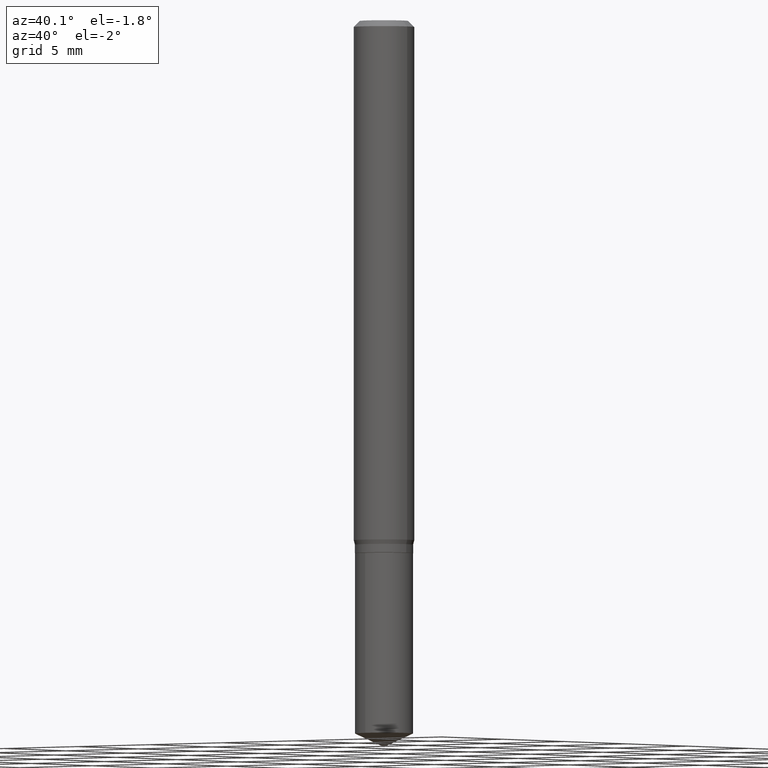
[diagram: clean part render]
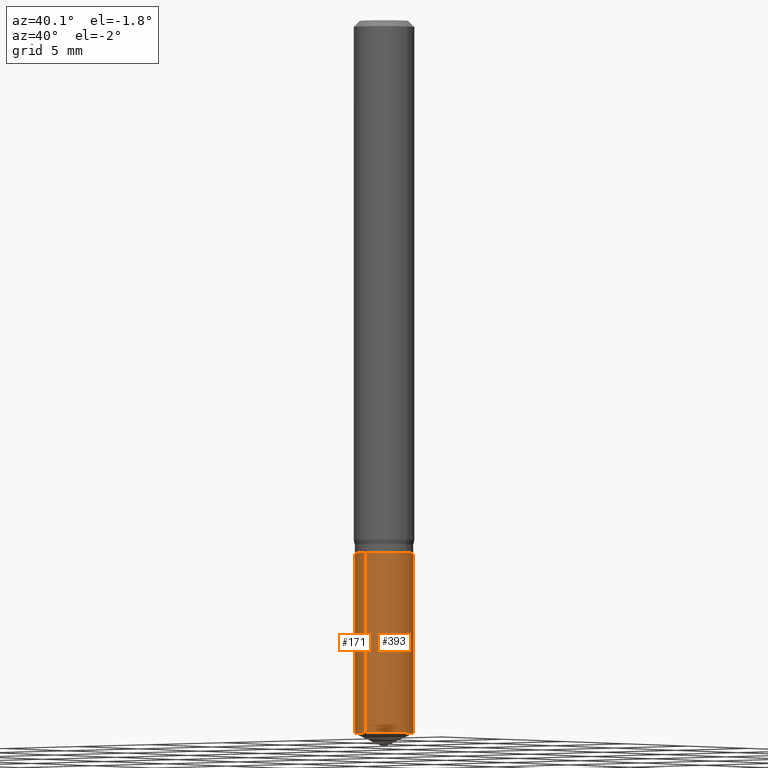
[diagram: same view with one multi-face feature highlighted, each face labeled with its STEP entity id]
A machine part, auxiliary view. The highlighted faces form ONE feature: a constant-radius fillet chain: 2 tangent blend faces with common blend radius 1.5253 mm. The faces share edges in the B-rep.
Their STEP definitions:
[1] entity #171 (Cylinder):
#7 = VERTEX_POINT ( 'NONE', #17 ) ;
#14 = ORIENTED_EDGE ( 'NONE', *, *, #213, .T. ) ;
#17 = CARTESIAN_POINT ( 'NONE',  ( -4.193269087950243510E-16, -0.06005000000000513399, -1.471998225127792548 ) ) ;
#23 = DIRECTION ( 'NONE',  ( -6.982962677686265922E-15, -1.000000000000000000, 4.549288915344318469E-15 ) ) ;
#31 = ORIENTED_EDGE ( 'NONE', *, *, #107, .T. ) ;
#66 = CARTESIAN_POINT ( 'NONE',  ( -4.193269087950333736E-16, -0.06005000000000384336, -1.099999999999999645 ) ) ;
#78 = AXIS2_PLACEMENT_3D ( 'NONE', #486, #298, #226 ) ;
#90 = VECTOR ( 'NONE', #97, 39.37007874015748143 ) ;
#97 = DIRECTION ( 'NONE',  ( -2.445399690415121810E-29, 3.491580316559632610E-15, 1.000000000000000000 ) ) ;
#107 = EDGE_CURVE ( 'NONE', #7, #206, #325, .T. ) ;
#141 = CARTESIAN_POINT ( 'NONE',  ( 4.266809128239669773E-16, 0.06004999999999616200, -1.100000000000000311 ) ) ;
#153 = CYLINDRICAL_SURFACE ( 'NONE', #78, 0.06004999999999999921 ) ;
#154 = CIRCLE ( 'NONE', #426, 0.06004999999999999921 ) ;
#158 = CARTESIAN_POINT ( 'NONE',  ( 3.599700031366129120E-29, -5.139491153378780407E-15, -1.471998225127792770 ) ) ;
#166 = ORIENTED_EDGE ( 'NONE', *, *, #361, .F. ) ;
#171 = ADVANCED_FACE ( 'NONE', ( #259 ), #153, .T. ) ;
#183 = LINE ( 'NONE', #141, #90 ) ;
#188 = DIRECTION ( 'NONE',  ( -2.445399690415121530E-29, 3.491580316559632610E-15, 1.000000000000000000 ) ) ;
#191 = CIRCLE ( 'NONE', #403, 0.06004999999999999921 ) ;
#193 = CARTESIAN_POINT ( 'NONE',  ( -4.193269087950333736E-16, -0.06005000000000384336, -1.099999999999999645 ) ) ;
#205 = CARTESIAN_POINT ( 'NONE',  ( 2.690015686803650369E-29, -3.840629472727460101E-15, -1.100000000000000089 ) ) ;
#206 = VERTEX_POINT ( 'NONE', #193 ) ;
#213 = EDGE_CURVE ( 'NONE', #318, #7, #154, .T. ) ;
#220 = DIRECTION ( 'NONE',  ( -2.445399690415121810E-29, 3.491580316559632610E-15, 1.000000000000000000 ) ) ;
#222 = CARTESIAN_POINT ( 'NONE',  ( 4.266809128239761971E-16, 0.06004999999999616894, -1.100000000000000311 ) ) ;
#226 = DIRECTION ( 'NONE',  ( -6.982962677686265922E-15, -1.000000000000000000, 4.549288915344318469E-15 ) ) ;
#259 = FACE_OUTER_BOUND ( 'NONE', #462, .T. ) ;
#298 = DIRECTION ( 'NONE',  ( -2.445399690415121530E-29, 3.491580316559632610E-15, 1.000000000000000000 ) ) ;
#318 = VERTEX_POINT ( 'NONE', #484 ) ;
#325 = LINE ( 'NONE', #66, #377 ) ;
#344 = VERTEX_POINT ( 'NONE', #222 ) ;
#361 = EDGE_CURVE ( 'NONE', #318, #344, #183, .T. ) ;
#377 = VECTOR ( 'NONE', #220, 39.37007874015748143 ) ;
#389 = ORIENTED_EDGE ( 'NONE', *, *, #422, .F. ) ;
#399 = DIRECTION ( 'NONE',  ( -2.445399690415121530E-29, 3.491580316559632610E-15, 1.000000000000000000 ) ) ;
#403 = AXIS2_PLACEMENT_3D ( 'NONE', #205, #399, #23 ) ;
#422 = EDGE_CURVE ( 'NONE', #344, #206, #191, .T. ) ;
#426 = AXIS2_PLACEMENT_3D ( 'NONE', #158, #188, #452 ) ;
#452 = DIRECTION ( 'NONE',  ( -6.982962677686265922E-15, -1.000000000000000000, 4.549288915344318469E-15 ) ) ;
#462 = EDGE_LOOP ( 'NONE', ( #166, #14, #31, #389 ) ) ;
#484 = CARTESIAN_POINT ( 'NONE',  ( 4.266809128239760985E-16, 0.06004999999999486443, -1.471998225127792992 ) ) ;
#486 = CARTESIAN_POINT ( 'NONE',  ( 2.690015686803650369E-29, -3.840629472727460101E-15, -1.100000000000000089 ) ) ;
[2] entity #393 (Cylinder):
#7 = VERTEX_POINT ( 'NONE', #17 ) ;
#12 = AXIS2_PLACEMENT_3D ( 'NONE', #243, #367, #105 ) ;
#17 = CARTESIAN_POINT ( 'NONE',  ( -4.193269087950243510E-16, -0.06005000000000513399, -1.471998225127792548 ) ) ;
#18 = FACE_OUTER_BOUND ( 'NONE', #236, .T. ) ;
#35 = DIRECTION ( 'NONE',  ( -2.445399690415121530E-29, 3.491580316559632610E-15, 1.000000000000000000 ) ) ;
#66 = CARTESIAN_POINT ( 'NONE',  ( -4.193269087950333736E-16, -0.06005000000000384336, -1.099999999999999645 ) ) ;
#90 = VECTOR ( 'NONE', #97, 39.37007874015748143 ) ;
#97 = DIRECTION ( 'NONE',  ( -2.445399690415121810E-29, 3.491580316559632610E-15, 1.000000000000000000 ) ) ;
#105 = DIRECTION ( 'NONE',  ( -6.982962677686265922E-15, -1.000000000000000000, 4.549288915344318469E-15 ) ) ;
#107 = EDGE_CURVE ( 'NONE', #7, #206, #325, .T. ) ;
#141 = CARTESIAN_POINT ( 'NONE',  ( 4.266809128239669773E-16, 0.06004999999999616200, -1.100000000000000311 ) ) ;
#179 = EDGE_CURVE ( 'NONE', #7, #318, #477, .T. ) ;
#183 = LINE ( 'NONE', #141, #90 ) ;
#186 = ORIENTED_EDGE ( 'NONE', *, *, #179, .T. ) ;
#193 = CARTESIAN_POINT ( 'NONE',  ( -4.193269087950333736E-16, -0.06005000000000384336, -1.099999999999999645 ) ) ;
#206 = VERTEX_POINT ( 'NONE', #193 ) ;
#220 = DIRECTION ( 'NONE',  ( -2.445399690415121810E-29, 3.491580316559632610E-15, 1.000000000000000000 ) ) ;
#222 = CARTESIAN_POINT ( 'NONE',  ( 4.266809128239761971E-16, 0.06004999999999616894, -1.100000000000000311 ) ) ;
#236 = EDGE_LOOP ( 'NONE', ( #186, #466, #284, #317 ) ) ;
#243 = CARTESIAN_POINT ( 'NONE',  ( 2.690015686803650369E-29, -3.840629472727460101E-15, -1.100000000000000089 ) ) ;
#245 = DIRECTION ( 'NONE',  ( -2.445399690415121530E-29, 3.491580316559632610E-15, 1.000000000000000000 ) ) ;
#284 = ORIENTED_EDGE ( 'NONE', *, *, #397, .F. ) ;
#285 = CYLINDRICAL_SURFACE ( 'NONE', #300, 0.06004999999999999921 ) ;
#300 = AXIS2_PLACEMENT_3D ( 'NONE', #446, #245, #401 ) ;
#317 = ORIENTED_EDGE ( 'NONE', *, *, #107, .F. ) ;
#318 = VERTEX_POINT ( 'NONE', #484 ) ;
#325 = LINE ( 'NONE', #66, #377 ) ;
#335 = AXIS2_PLACEMENT_3D ( 'NONE', #382, #35, #413 ) ;
#344 = VERTEX_POINT ( 'NONE', #222 ) ;
#361 = EDGE_CURVE ( 'NONE', #318, #344, #183, .T. ) ;
#367 = DIRECTION ( 'NONE',  ( -2.445399690415121530E-29, 3.491580316559632610E-15, 1.000000000000000000 ) ) ;
#377 = VECTOR ( 'NONE', #220, 39.37007874015748143 ) ;
#382 = CARTESIAN_POINT ( 'NONE',  ( 3.599700031366129120E-29, -5.139491153378780407E-15, -1.471998225127792770 ) ) ;
#393 = ADVANCED_FACE ( 'NONE', ( #18 ), #285, .T. ) ;
#397 = EDGE_CURVE ( 'NONE', #206, #344, #425, .T. ) ;
#401 = DIRECTION ( 'NONE',  ( -6.982962677686265922E-15, -1.000000000000000000, 4.549288915344318469E-15 ) ) ;
#413 = DIRECTION ( 'NONE',  ( -6.982962677686265922E-15, -1.000000000000000000, 4.549288915344318469E-15 ) ) ;
#425 = CIRCLE ( 'NONE', #12, 0.06004999999999999921 ) ;
#446 = CARTESIAN_POINT ( 'NONE',  ( 2.690015686803650369E-29, -3.840629472727460101E-15, -1.100000000000000089 ) ) ;
#466 = ORIENTED_EDGE ( 'NONE', *, *, #361, .T. ) ;
#477 = CIRCLE ( 'NONE', #335, 0.06004999999999999921 ) ;
#484 = CARTESIAN_POINT ( 'NONE',  ( 4.266809128239760985E-16, 0.06004999999999486443, -1.471998225127792992 ) ) ;